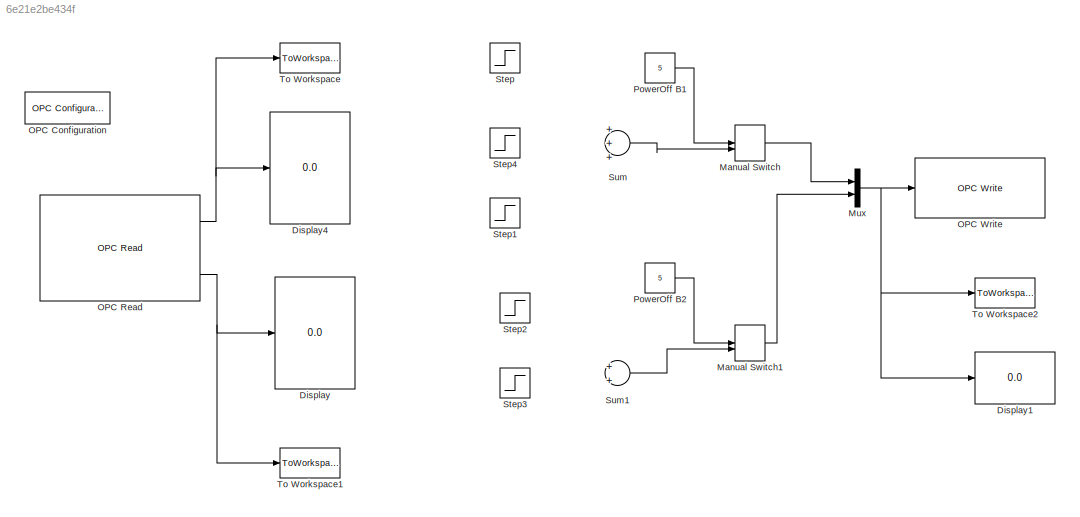
MODEL slx_6e21e2be434f
KIND model
BLOCK [Display] Display
  Decimation = 1
  Lockdown = off
  Ports = [1]
BLOCK [Display] Display1
  Decimation = 1
  Lockdown = off
  Ports = [1]
BLOCK [Display] Display4
  Decimation = 1
  Lockdown = off
  Ports = [1]
BLOCK [ManualSwitch] Manual Switch
BLOCK [ManualSwitch] Manual Switch1
BLOCK [Mux] Mux
  DisplayOption = bar
  Inputs = 2
  Ports = [2, 1]
BLOCK [Reference] OPC Configuration  REF=opclib/OPC Configuration
  Ports = []
  SourceBlock = opclib/OPC Configuration
  SourceType = OPC Configuration
  beingUsed = on
  errMissingItems = Error
  errRTViolation = Warn
  errReadWrite = Warn
  errShutdown = Error
  opcServers = localhost/RSLinx OPC Server/10
  rtEnable = on
  showLatency = off
  speedup = 1
BLOCK [Reference] OPC Read  REF=opclib/OPC Read
  Ports = [0, 3]
  SourceBlock = opclib/OPC Read
  SourceType = OPC Read
  dataType = double
  itemIDs = [Opc_Teste]Tanq4, [Opc_Teste]Tanq3, [Opc_Teste]Tanq2, [Opc_Teste]Tanq1, [Test_Tags]Bomba1, [Test_Tags]Bomba2
  readMode = Synchronous (cache)
  serverHost = localhost
  serverID = RSLinx OPC Server
  showQual = on
  showTS = on
  tsMode = Seconds since start
  updateRate = 0.2
BLOCK [Reference] OPC Write  REF=opclib/OPC Write
  Ports = [1]
  SourceBlock = opclib/OPC Write
  SourceType = OPC Write
  itemIDs = [Test_Tags]ref1, [Test_Tags]ref2
  serverHost = localhost
  serverID = RSLinx OPC Server
  updateRate = 0.2
  writeMode = Synchronous
BLOCK [Constant] PowerOff B1
  Value = 5
BLOCK [Constant] PowerOff B2
  Value = 5
BLOCK [Step] Step
  After = 45
  Before = 42
  Time = 1500
BLOCK [Step] Step1
  After = -42
  Time = 6000
BLOCK [Step] Step2
  After = 45
  Before = 42
  Time = 3000
BLOCK [Step] Step3
  After = -45
  Time = 6000
BLOCK [Step] Step4
  After = -3
  Time = 4500
BLOCK [Sum] Sum
  InputSameDT = off
  Inputs = +++
  OutDataTypeStr = Inherit: Inherit via internal rule
  Ports = [3, 1]
  SaturateOnIntegerOverflow = off
BLOCK [Sum] Sum1
  InputSameDT = off
  OutDataTypeStr = Inherit: Inherit via internal rule
  Ports = [2, 1]
  SaturateOnIntegerOverflow = off
BLOCK [ToWorkspace] To Workspace
  MaxDataPoints = inf
  Ports = [1]
  SampleTime = -1
  SaveFormat = Timeseries
  VariableName = outputs
BLOCK [ToWorkspace] To Workspace1
  MaxDataPoints = inf
  Ports = [1]
  SampleTime = -1
  SaveFormat = Timeseries
  VariableName = time
BLOCK [ToWorkspace] To Workspace2
  MaxDataPoints = inf
  Ports = [1]
  SampleTime = -1
  SaveFormat = Timeseries
  VariableName = inputs
LINE Manual Switch1:1 -> Mux:2
LINE Manual Switch:1 -> Mux:1
NET Mux:1 -> Display1:1, OPC Write:1, To Workspace2:1
NET OPC Read:1 -> Display4:1, To Workspace:1
NET OPC Read:3 -> Display:1, To Workspace1:1
LINE PowerOff B1:1 -> Manual Switch:1
LINE PowerOff B2:1 -> Manual Switch1:1
LINE Sum1:1 -> Manual Switch1:2
LINE Sum:1 -> Manual Switch:2
note: NET lines group one-source signal fan-out (src -> all destinations, sorted); 1:1 wires keep LINE
